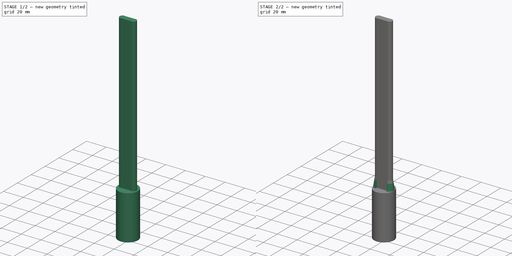
[diagram: build sequence overview — one tinted view per stage of 2, left to right]
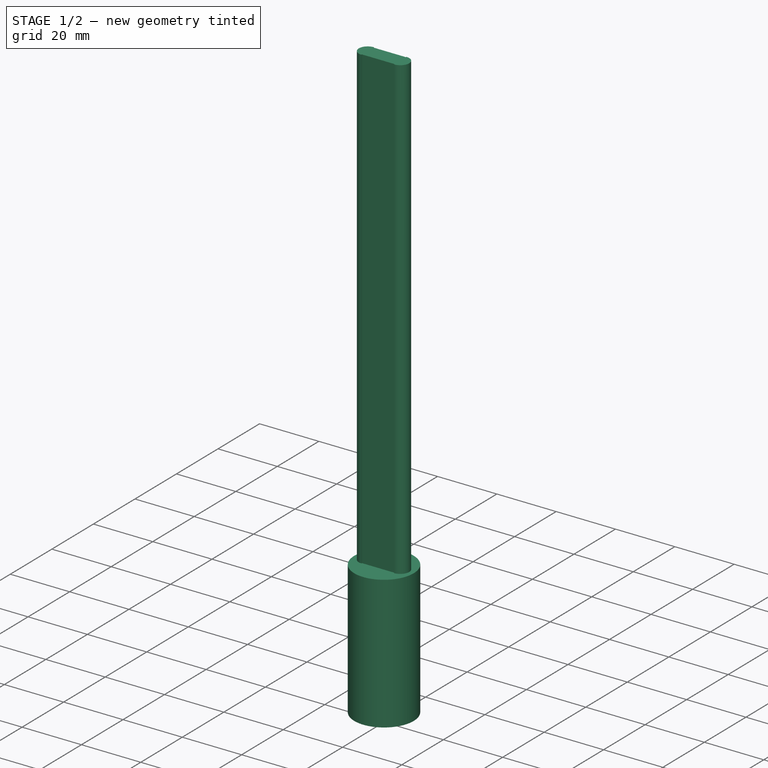
[diagram: stage 1 of 2 — iso view after this stage's code; geometry added in this stage tinted green]
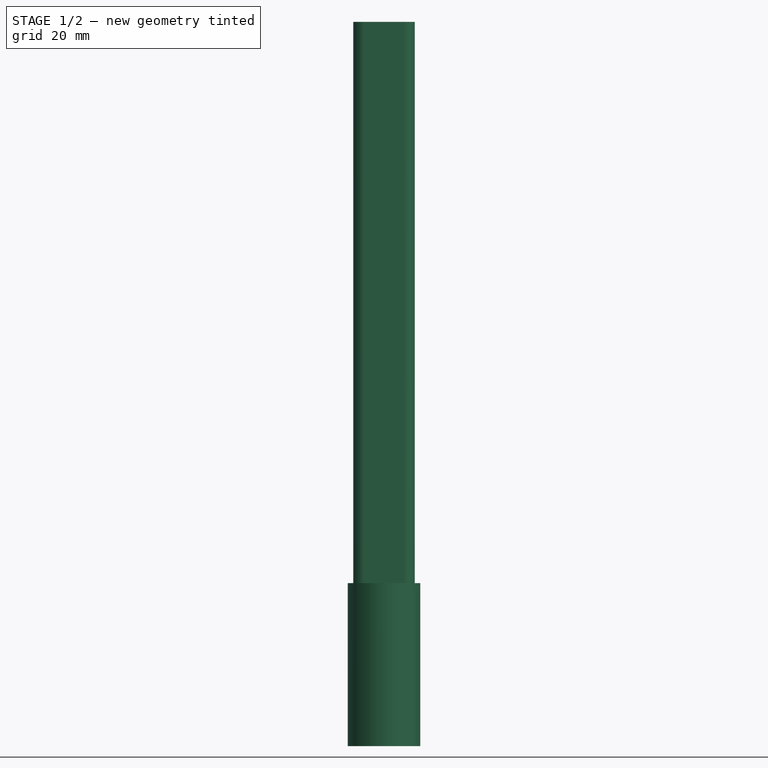
[diagram: stage 1 of 2 — front view after this stage's code; geometry added in this stage tinted green]
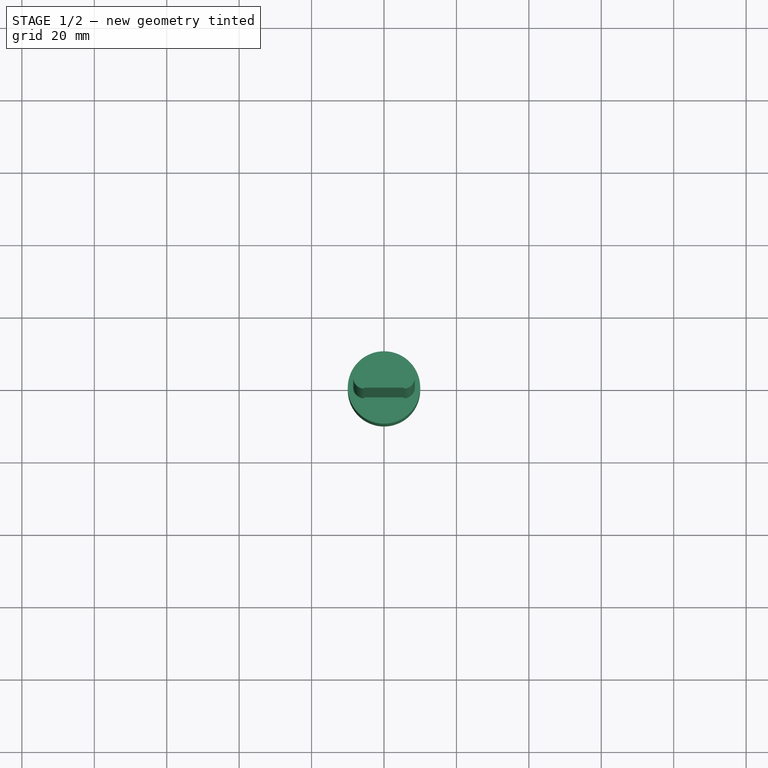
[diagram: stage 1 of 2 — top view after this stage's code; geometry added in this stage tinted green]
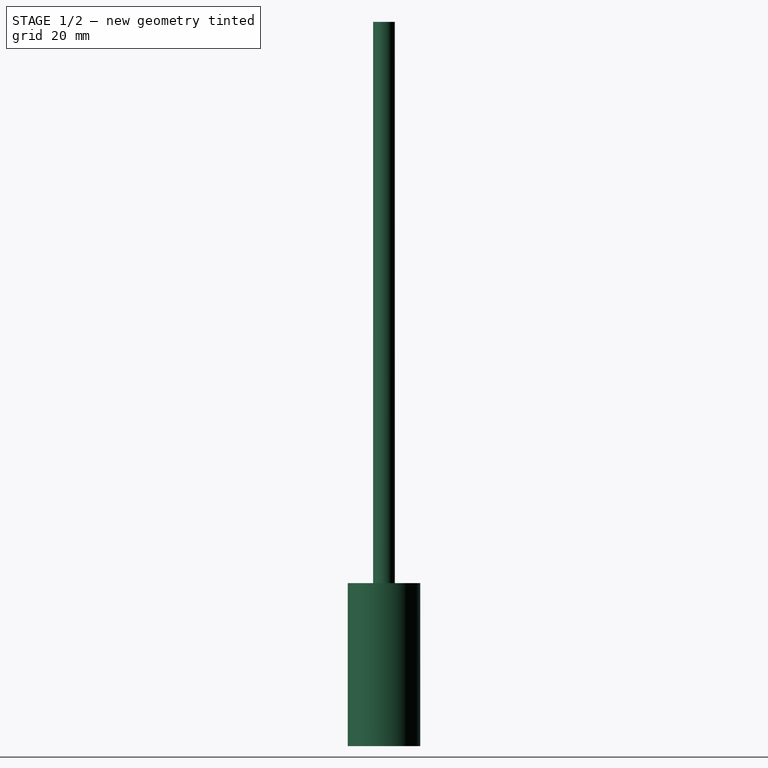
[diagram: stage 1 of 2 — right view after this stage's code; geometry added in this stage tinted green]
FCSTD DOCUMENT  (FreeCAD 0.19R23141 (Git))
Label: resin_bottle_curing
License: All rights reserved
LicenseURL: http://en.wikipedia.org/wiki/All_rights_reserved
objects: Sketcher::SketchObject×2, PartDesign::Pad×2, PartDesign::Chamfer×1, PartDesign::Body×1
note: 9 computed .brp shape members not serialized (recipe doc carries the construction recipe); baked Part::Feature solids carry a one-line shape summary decoded from their .brp

FEATURE [Sketcher::SketchObject] Sketch
  MapMode = 5
  Support = -> [XY_Plane]
  sketch-geometry (1):
    g0: Circle CenterX=0 CenterY=0 CenterZ=0 NormalX=0 NormalY=0 NormalZ=1 AngleXU=0 Radius=10
  constraints (2):
    c: Coincident(g0,g-1)
    c: Radius(g0) = 10
FEATURE [PartDesign::Pad] Pad
  Direction = (1,1,1)
  Length = 45
  Length2 = 100
  Profile = -> Sketch
  Type = 0
FEATURE [Sketcher::SketchObject] Sketch001
  MapMode = 5
  Placement = pos=(0,0,45) rot=(0,0,1;0rad)
  Support = -> [Pad]
  sketch-geometry (13):
    g0: LineSegment StartX=-5.5 StartY=2.75 StartZ=0 EndX=5.5 EndY=2.75 EndZ=0
    g1: LineSegment StartX=5.5 StartY=2.75 StartZ=0 EndX=5.5 EndY=3 EndZ=0
    g2: LineSegment StartX=-5.5 StartY=2.75 StartZ=0 EndX=-5.5 EndY=3 EndZ=0
    g3: LineSegment StartX=-5.5 StartY=-3 StartZ=0 EndX=-5.5 EndY=-2.75 EndZ=0
    g4: LineSegment StartX=-5.5 StartY=-2.75 StartZ=0 EndX=5.5 EndY=-2.75 EndZ=0
    g5: LineSegment StartX=5.5 StartY=-2.75 StartZ=0 EndX=5.5 EndY=-3 EndZ=0
    g6: ArcOfCircle CenterX=-5.5 CenterY=0 CenterZ=0 NormalX=0 NormalY=0 NormalZ=1 AngleXU=0 Radius=3 StartAngle=1.5708 EndAngle=4.71239
    g7: ArcOfCircle CenterX=5.5 CenterY=0 CenterZ=0 NormalX=0 NormalY=0 NormalZ=1 AngleXU=0 Radius=3 StartAngle=4.71239 EndAngle=7.85398
    g8: LineSegment [constr] StartX=-5.5 StartY=2.75 StartZ=0 EndX=0 EndY=0 EndZ=0
    g9: LineSegment [constr] StartX=5.5 StartY=2.75 StartZ=0 EndX=0 EndY=0 EndZ=0
    g10: LineSegment [constr] StartX=0 StartY=0 StartZ=0 EndX=5.5 EndY=-2.75 EndZ=0
    g11: LineSegment [constr] StartX=5.5 StartY=-2.75 StartZ=0 EndX=5.5 EndY=2.75 EndZ=0
    g12: LineSegment [constr] StartX=-5.5 StartY=-2.75 StartZ=0 EndX=-5.5 EndY=2.75 EndZ=0
  constraints (36):
    c: Horizontal(g0)
    c: Coincident(g0,g1)
    c: Vertical(g1)
    c: Coincident(g0,g2)
    c: Vertical(g2)
    c: Vertical(g3)
    c: Coincident(g3,g4)
    c: Horizontal(g4)
    c: Coincident(g4,g5)
    c: Vertical(g5)
    c: PointOnObject(g6,g-1)
    c: Coincident(g6,g2)
    c: Coincident(g6,g3)
    c: PointOnObject(g7,g-1)
    c: Coincident(g7,g1)
    c: Coincident(g7,g5)
    c: Coincident(g8,g0)
    c: Coincident(g8,g-1)
    c: Coincident(g9,g0)
    c: Coincident(g9,g-1)
    c: Coincident(g10,g-1)
    c: Coincident(g10,g4)
    c: Coincident(g11,g4)
    c: Coincident(g11,g0)
    c: Vertical(g11)
    c: Coincident(g12,g3)
    c: Coincident(g12,g0)
    c: Vertical(g12)
    c: Equal(g10,g9)
    c: Equal(g9,g8)
    c: PointOnObject(g6,g12)
    c: PointOnObject(g7,g11)
    c: Radius(g7) = 3
    c: Equal(g7,g6)
    c: DistanceX(g0,g0) = 11
    c: DistanceY(g11,g11) = 5.5
FEATURE [PartDesign::Pad] Pad001
  BaseFeature = -> Pad
  Direction = (1,1,1)
  Length = 155
  Length2 = 100
  Profile = -> Sketch001
  Type = 0
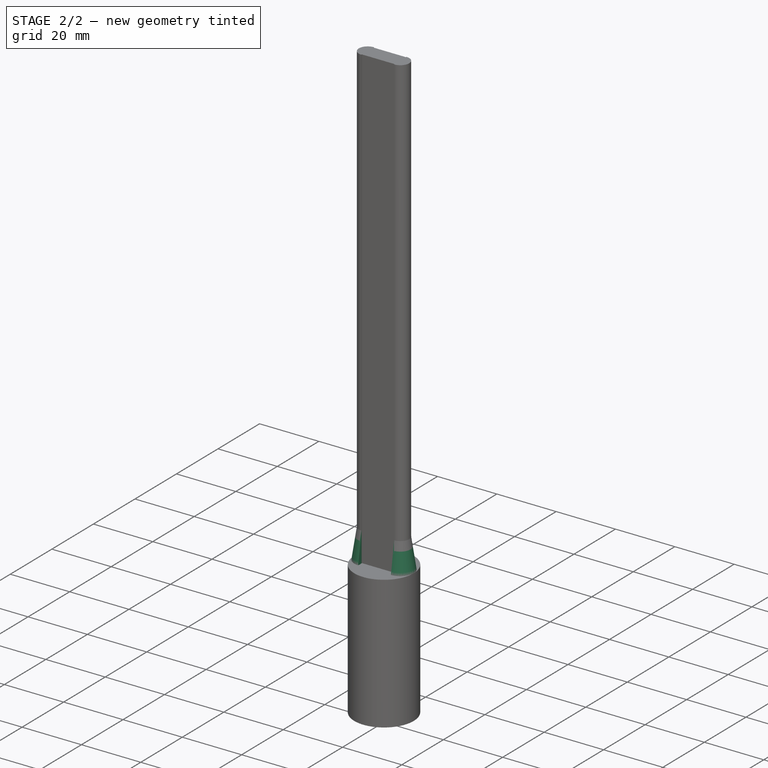
[diagram: stage 2 of 2 — iso view after this stage's code; geometry added in this stage tinted green]
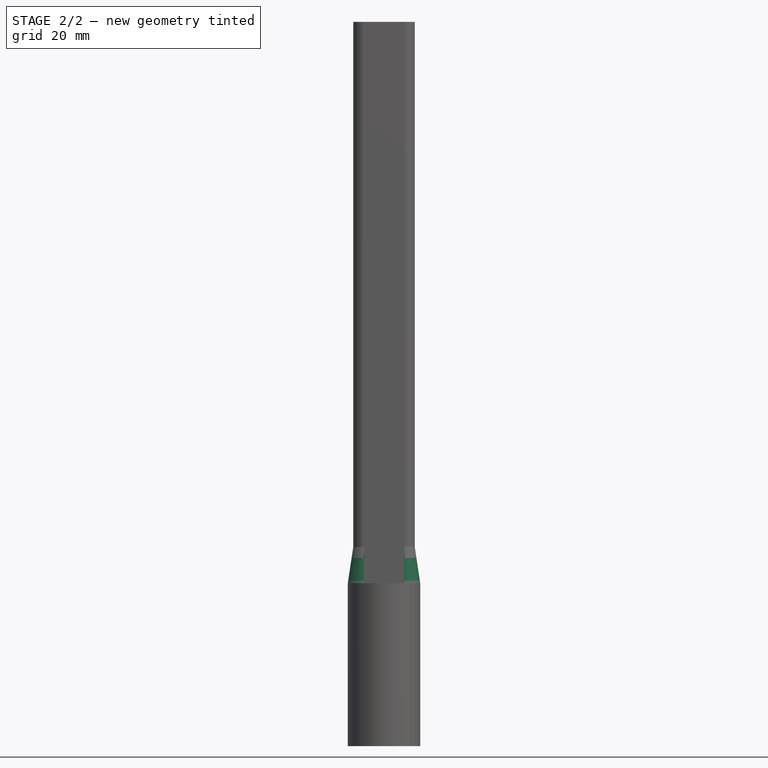
[diagram: stage 2 of 2 — front view after this stage's code; geometry added in this stage tinted green]
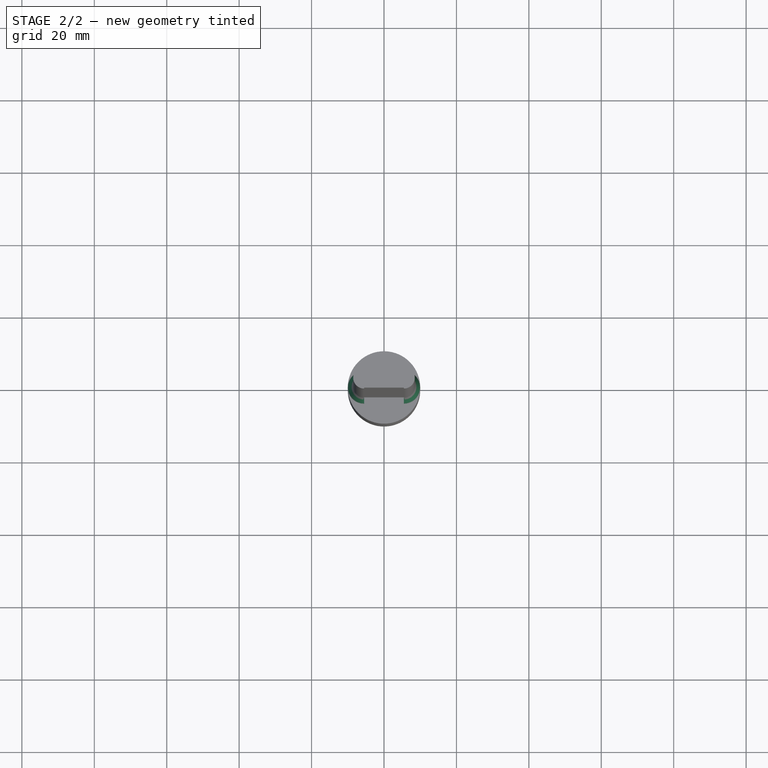
[diagram: stage 2 of 2 — top view after this stage's code; geometry added in this stage tinted green]
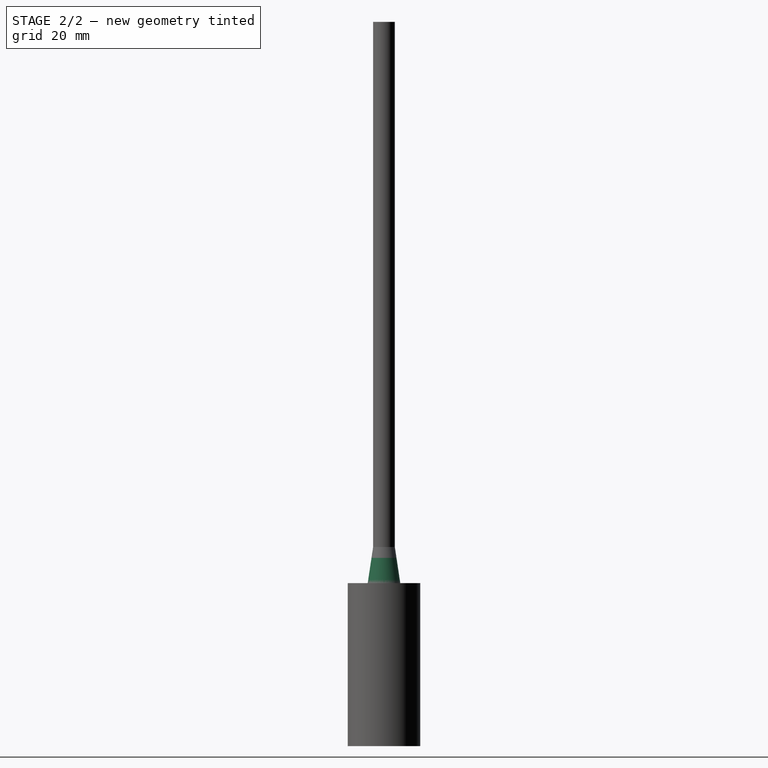
[diagram: stage 2 of 2 — right view after this stage's code; geometry added in this stage tinted green]
FEATURE [PartDesign::Chamfer] Chamfer
  Angle = 45
  Base = -> Pad001 [Edge8,Edge4]
  BaseFeature = -> Pad001
  ChamferType = 1
  FlipDirection = false
  Size = 1.5
  Size2 = 10
  SupportTransform = false
FEATURE [PartDesign::Body] Body
  Group = -> [Sketch,Pad,Sketch001,Pad001,Chamfer]
  Origin = -> Origin
  Tip = -> Chamfer
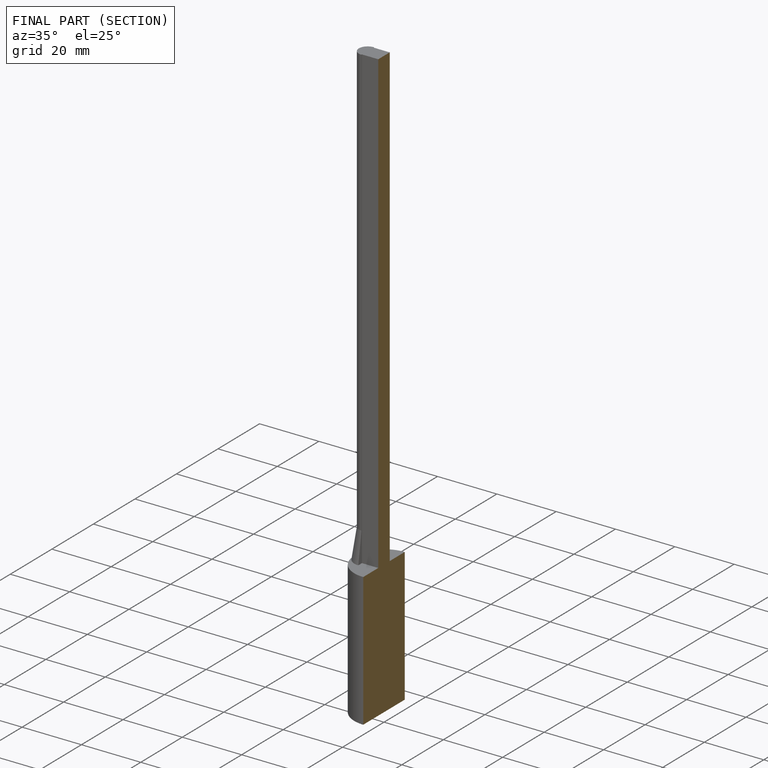
[diagram: finished part — half-section view (interior)]
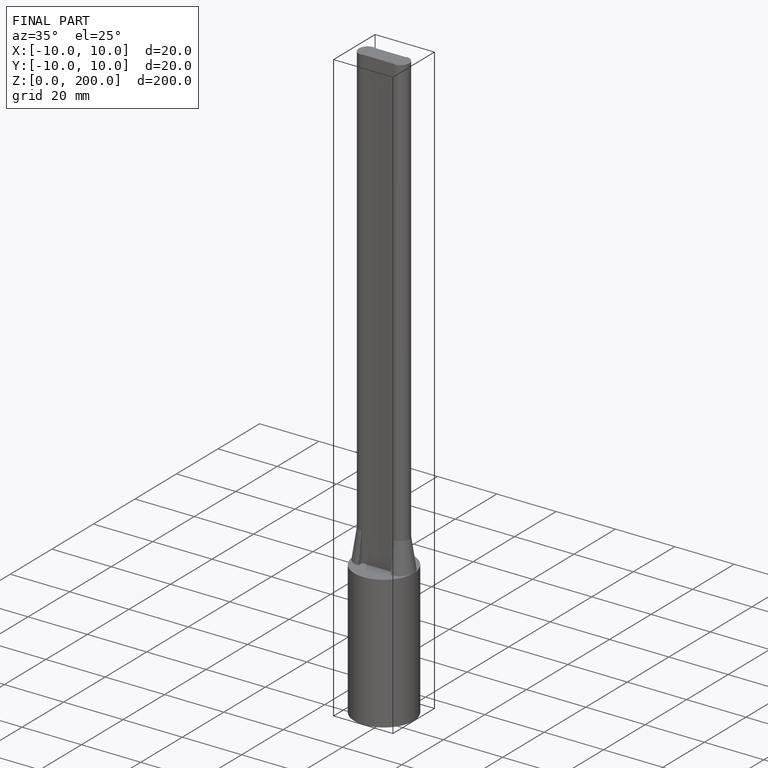
[diagram: finished part — iso view with bounding-box wireframe]
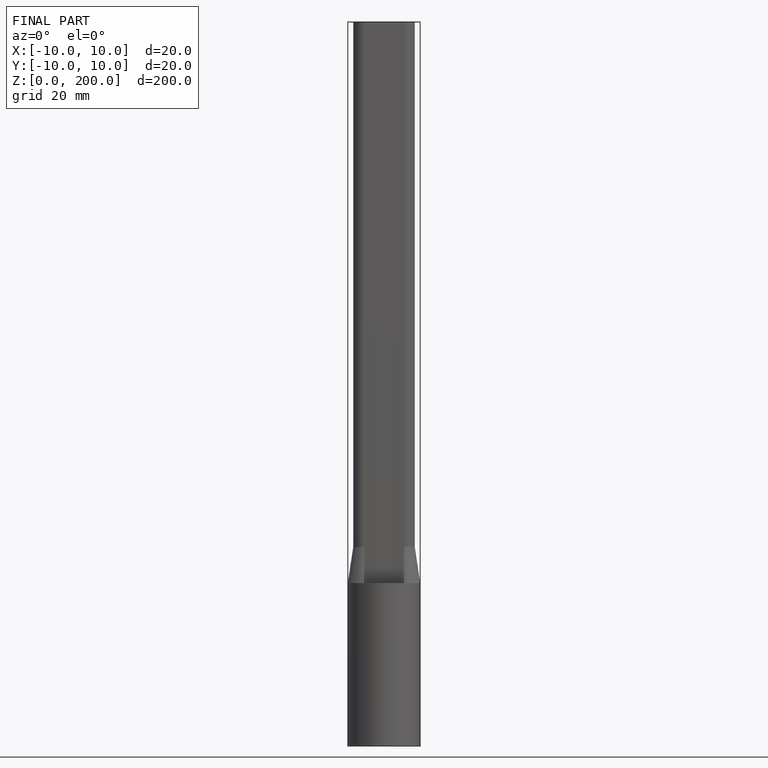
[diagram: finished part — front view with bounding-box wireframe]
